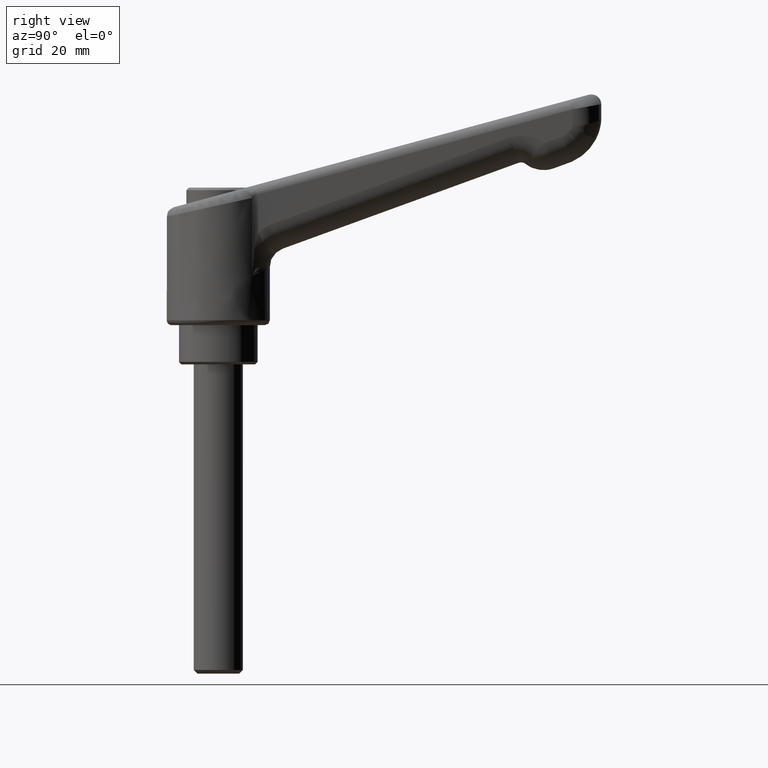
[diagram: clean part render]
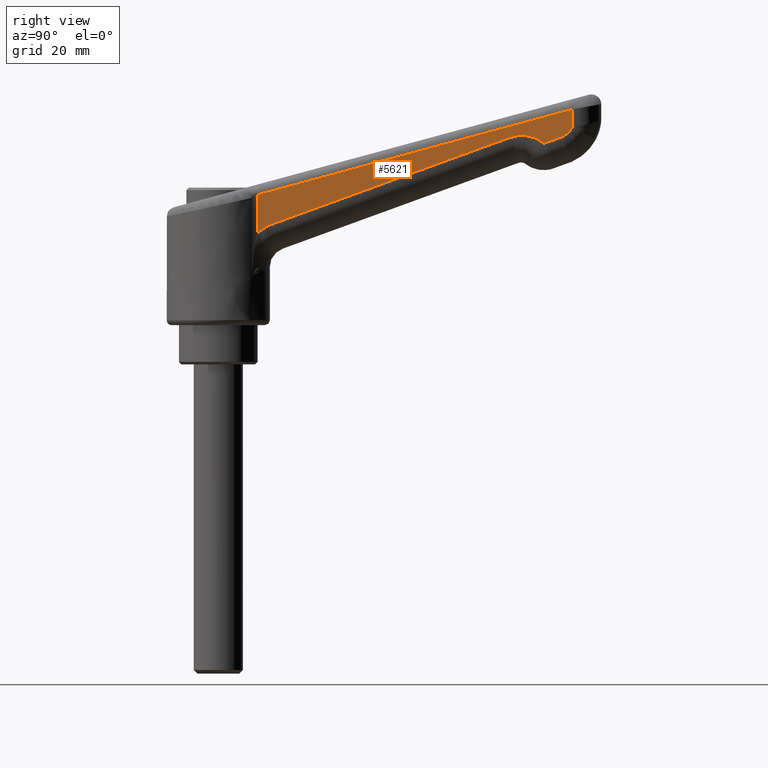
[diagram: same view with one face highlighted and labeled with its STEP entity id]
A machine part, right view. The second image highlights one B-rep face of the part: STEP entity #5621.
In plain terms, the highlighted face is a freeform B-spline surface patch.
Its self-contained STEP definition (entity closure, byte-faithful):
#2680=CARTESIAN_POINT('',(72.139020671948700,-5.998398053955600,40.354479944382241));
#2681=VERTEX_POINT('',#2680);
#2803=CARTESIAN_POINT('',(70.063429511224399,-6.046502647905560,38.375896371800998));
#2804=VERTEX_POINT('',#2803);
#2861=CARTESIAN_POINT('',(70.063429511224399,-6.046502647905560,38.375896371800998));
#2862=CARTESIAN_POINT('',(70.421485054059545,-6.038204233060821,38.543116490273512));
#2863=CARTESIAN_POINT('',(71.015566701184682,-6.024435598394730,38.923187298139702));
#2864=CARTESIAN_POINT('',(71.695367271136391,-6.008680313344722,39.626048513137519));
#2865=CARTESIAN_POINT('',(72.011455530119278,-6.001354546287002,40.112410038500812));
#2866=CARTESIAN_POINT('',(72.139020671948700,-5.998398053955600,40.354479944382241));
#2867=B_SPLINE_CURVE_WITH_KNOTS('',3,(#2861,#2862,#2863,#2864,#2865,#2866),.UNSPECIFIED.,.F.,.U.,(4,1,1,4),(0.000000010129733,1.185800533257847,2.097954210712186,2.918892839117893),.UNSPECIFIED.);
#2868=EDGE_CURVE('',#2804,#2681,#2867,.T.);
#2902=CARTESIAN_POINT('',(66.568802097287204,-6.127495299991820,37.103963821205006));
#2903=VERTEX_POINT('',#2902);
#2904=CARTESIAN_POINT('',(66.568802097287204,-6.127495299991820,37.103963821205006));
#2905=CARTESIAN_POINT('',(70.063429511224399,-6.046502647905560,38.375896371800998));
#2906=QUASI_UNIFORM_CURVE('',1,(#2904,#2905),.UNSPECIFIED.,.F.,.U.);
#2907=EDGE_CURVE('',#2903,#2804,#2906,.T.);
#2993=CARTESIAN_POINT('',(66.091553539716486,-6.138556171954260,37.178566971879007));
#2994=VERTEX_POINT('',#2993);
#3023=CARTESIAN_POINT('',(66.091553539716486,-6.138556171954260,37.178566971879007));
#3024=CARTESIAN_POINT('',(66.166150762516480,-6.136827281804527,37.120370275217589));
#3025=CARTESIAN_POINT('',(66.328973059454412,-6.133053657871057,37.056850311990019));
#3026=CARTESIAN_POINT('',(66.499738539561974,-6.129095940071592,37.078713743221989));
#3027=CARTESIAN_POINT('',(66.568802097287204,-6.127495299991820,37.103963821205006));
#3028=B_SPLINE_CURVE_WITH_KNOTS('',3,(#3023,#3024,#3025,#3026,#3027),.UNSPECIFIED.,.F.,.U.,(4,1,4),(0.000000151282440,0.283686608770176,0.504332784129348),.UNSPECIFIED.);
#3029=EDGE_CURVE('',#2994,#2903,#3028,.T.);
#3112=CARTESIAN_POINT('',(59.410061699998501,-6.293408658326110,38.223006701410803));
#3113=VERTEX_POINT('',#3112);
#3139=CARTESIAN_POINT('',(59.410061699998501,-6.293408658326110,38.223006701410803));
#3140=CARTESIAN_POINT('',(59.790017635380337,-6.284602672669432,38.361339401123622));
#3141=CARTESIAN_POINT('',(60.538346944411643,-6.267259142675157,38.562288183801321));
#3142=CARTESIAN_POINT('',(61.822816949304404,-6.237489836852511,38.687362478843781));
#3143=CARTESIAN_POINT('',(63.148549435429608,-6.206764217983984,38.565015887954317));
#3144=CARTESIAN_POINT('',(64.666829026348708,-6.171576063107576,38.100535366510833));
#3145=CARTESIAN_POINT('',(65.597630442945388,-6.150003498606171,37.561504485476377));
#3146=CARTESIAN_POINT('',(66.091553539716486,-6.138556171954260,37.178566971879007));
#3147=B_SPLINE_CURVE_WITH_KNOTS('',3,(#3139,#3140,#3141,#3142,#3143,#3144,#3145,#3146),.UNSPECIFIED.,.F.,.U.,(4,1,1,1,1,4),(0.000000024578217,1.213357356845812,2.316434479096956,3.860695603493574,5.184381355967391,7.059583598151273),.UNSPECIFIED.);
#3148=EDGE_CURVE('',#3113,#2994,#3147,.T.);
#3167=CARTESIAN_POINT('',(11.251763202949100,-7.409541468273670,20.694827340506350));
#3168=VERTEX_POINT('',#3167);
#3191=CARTESIAN_POINT('',(11.251763202949100,-7.409541468273670,20.694827340506350));
#3192=CARTESIAN_POINT('',(59.410061699998501,-6.293408658326110,38.223006701410803));
#3193=QUASI_UNIFORM_CURVE('',1,(#3191,#3192),.UNSPECIFIED.,.F.,.U.);
#3194=EDGE_CURVE('',#3168,#3113,#3193,.T.);
#3257=CARTESIAN_POINT('',(8.098602834848819,-7.482620166061929,18.817905123507799));
#3258=VERTEX_POINT('',#3257);
#3282=CARTESIAN_POINT('',(8.098602834848819,-7.482620166061929,18.817905123507799));
#3283=CARTESIAN_POINT('',(8.415380828018602,-7.475278413494239,19.098156744577651));
#3284=CARTESIAN_POINT('',(9.389477942510544,-7.452702413438394,19.854009367481421));
#3285=CARTESIAN_POINT('',(10.493090688571399,-7.427124715849448,20.418539263547832));
#3286=CARTESIAN_POINT('',(11.251763202949100,-7.409541468273670,20.694827340506350));
#3287=B_SPLINE_CURVE_WITH_KNOTS('',3,(#3282,#3283,#3284,#3285,#3286),.UNSPECIFIED.,.F.,.U.,(4,1,4),(4.340187E-009,1.269063572863250,3.691811024146946),.UNSPECIFIED.);
#3288=EDGE_CURVE('',#3258,#3168,#3287,.T.);
#4393=CARTESIAN_POINT('',(8.098602834848819,-7.482620166061929,25.891804639626351));
#4394=VERTEX_POINT('',#4393);
#4395=CARTESIAN_POINT('',(8.098602834848819,-7.482620166061929,25.891804639626351));
#4396=CARTESIAN_POINT('',(8.098602834848819,-7.482620166061929,18.817905123507799));
#4397=QUASI_UNIFORM_CURVE('',1,(#4395,#4396),.UNSPECIFIED.,.F.,.U.);
#4398=EDGE_CURVE('',#4394,#3258,#4397,.T.);
#4459=CARTESIAN_POINT('',(8.012310873974581,-7.484620097367070,26.550085542636701));
#4460=VERTEX_POINT('',#4459);
#4479=CARTESIAN_POINT('',(8.012310873974581,-7.484620097367070,26.550085542636701));
#4480=CARTESIAN_POINT('',(8.069789831425915,-7.483287945852281,26.335713340669610));
#4481=CARTESIAN_POINT('',(8.098900914441442,-7.482613257669739,26.113754609104550));
#4482=CARTESIAN_POINT('',(8.098602834848819,-7.482620166061929,25.891804639626351));
#4483=B_SPLINE_CURVE_WITH_KNOTS('',3,(#4479,#4480,#4481,#4482),.UNSPECIFIED.,.F.,.U.,(4,4),(4.691777E-009,0.665840529826226),.UNSPECIFIED.);
#4484=EDGE_CURVE('',#4460,#4394,#4483,.T.);
#5261=CARTESIAN_POINT('',(72.139020671948700,-5.998398053955600,43.940390183805903));
#5262=VERTEX_POINT('',#5261);
#5263=CARTESIAN_POINT('',(72.139020671948700,-5.998398053955600,43.940390183805903));
#5264=CARTESIAN_POINT('',(8.012310873974581,-7.484620097367070,26.550085542636701));
#5265=QUASI_UNIFORM_CURVE('',1,(#5263,#5264),.UNSPECIFIED.,.F.,.U.);
#5266=EDGE_CURVE('',#5262,#4460,#5265,.T.);
#5593=CARTESIAN_POINT('',(72.139020671948700,-5.998398053955600,40.354479944382241));
#5594=CARTESIAN_POINT('',(72.139020671948700,-5.998398053955600,43.940390183805903));
#5595=QUASI_UNIFORM_CURVE('',1,(#5593,#5594),.UNSPECIFIED.,.F.,.U.);
#5596=EDGE_CURVE('',#2681,#5262,#5595,.T.);
#5604=CARTESIAN_POINT('',(4.809181843855790,-7.558856885554888,45.195259589111863));
#5605=CARTESIAN_POINT('',(75.342151422079908,-5.924161225904208,45.195259589111863));
#5606=CARTESIAN_POINT('',(4.809181843855790,-7.558856885554888,17.563038188939551));
#5607=CARTESIAN_POINT('',(75.342151422079908,-5.924161225904208,17.563038188939551));
#5608=B_SPLINE_SURFACE_WITH_KNOTS('',1,1,((#5604,#5606),(#5605,#5607)),.UNSPECIFIED.,.F.,.F.,.U.,(2,2),(2,2),(0.0,70.551910161400784),(0.0,27.632221400172309),.UNSPECIFIED.);
#5609=ORIENTED_EDGE('',*,*,#2907,.T.);
#5610=ORIENTED_EDGE('',*,*,#2868,.T.);
#5611=ORIENTED_EDGE('',*,*,#5596,.T.);
#5612=ORIENTED_EDGE('',*,*,#5266,.T.);
#5613=ORIENTED_EDGE('',*,*,#4484,.T.);
#5614=ORIENTED_EDGE('',*,*,#4398,.T.);
#5615=ORIENTED_EDGE('',*,*,#3288,.T.);
#5616=ORIENTED_EDGE('',*,*,#3194,.T.);
#5617=ORIENTED_EDGE('',*,*,#3148,.T.);
#5618=ORIENTED_EDGE('',*,*,#3029,.T.);
#5619=EDGE_LOOP('',(#5609,#5610,#5611,#5612,#5613,#5614,#5615,#5616,#5617,#5618));
#5620=FACE_OUTER_BOUND('',#5619,.T.);
#5621=ADVANCED_FACE('',(#5620),#5608,.F.);